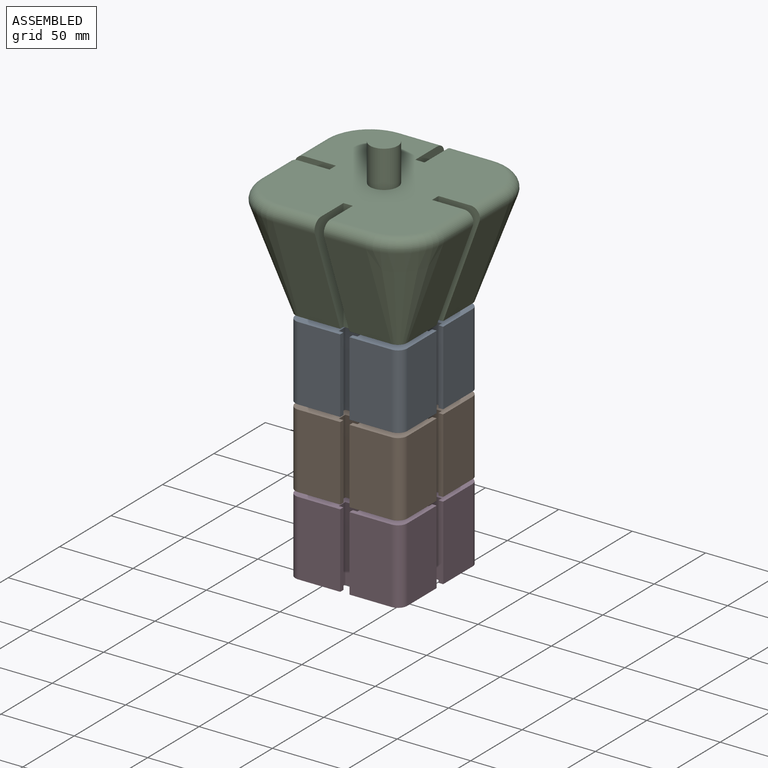
[diagram: assembled view]
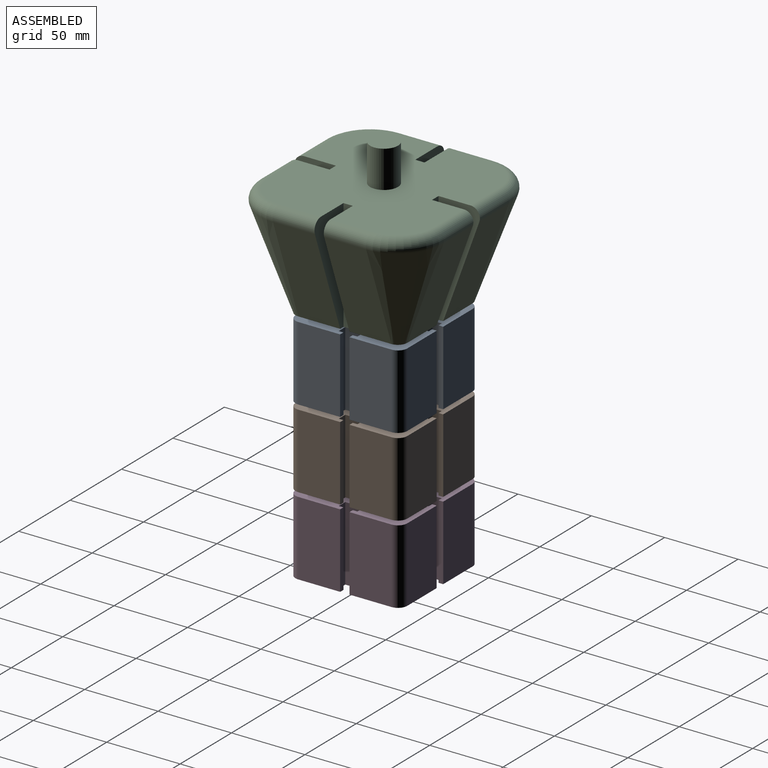
[diagram: assembled view, second angle]
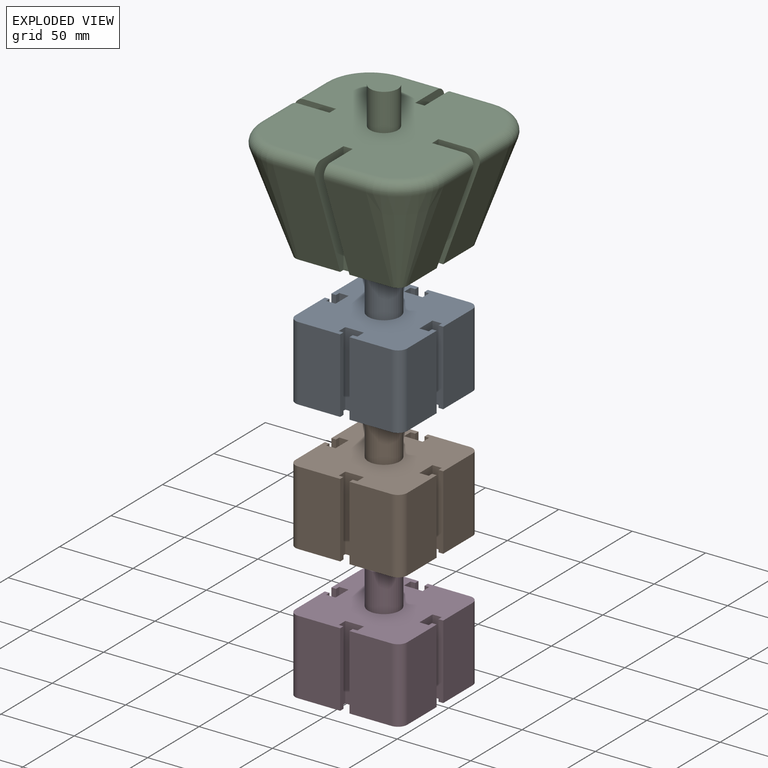
[diagram: exploded view]
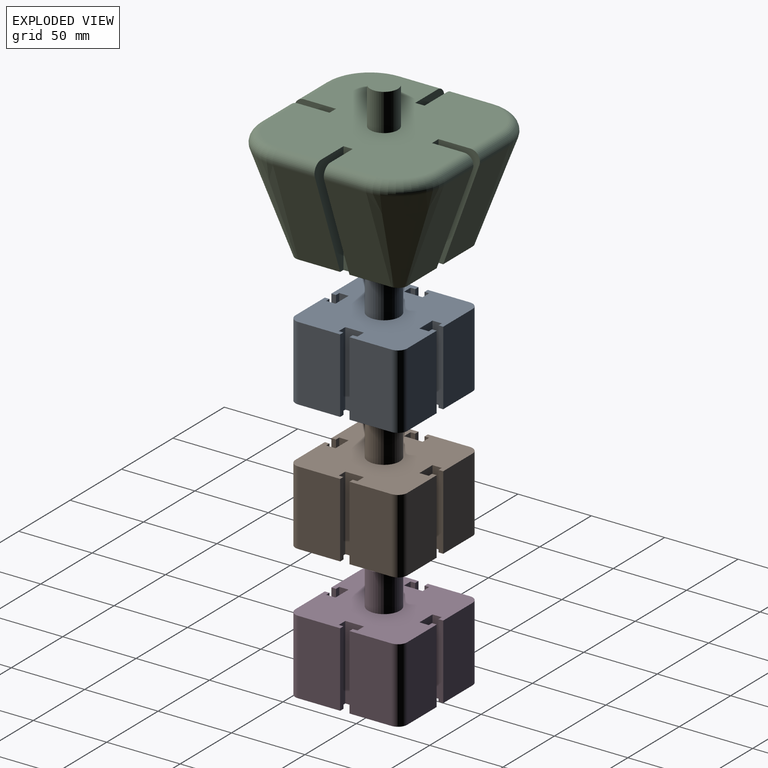
[diagram: exploded view, second angle]
ASSEMBLY  parts=4 mates=3
PART A: 46 faces, bbox 76.2x76.2x76.2 mm
  f0: plane 50.8x12.7mm, normal (0,1,0), area 645.2mm2, adj f1,f39,f40,f41
  f1: plane 50.8x6.35mm, normal (1,0,0), area 322.6mm2, adj f0,f2,f40,f41
  f2: plane 50.8x3.18mm, normal (0,-1,0), area 161.3mm2, adj f1,f3,f40,f41
  f3: plane 50.8x3.18mm, normal (1,0,0), area 161.3mm2, adj f2,f4,f40,f41
  f4: plane 50.8x28.58mm, normal (0,1,0), area 1451.6mm2, adj f3,f5,f40,f41
  f5: cylinder r=6.35mm len=50.8mm, axis (0,0,-1), area 506.7mm2, adj f4,f6,f40,f41
  f6: plane 50.8x28.58mm, normal (-1,0,0), area 1451.6mm2, adj f5,f7,f40,f41
  f7: plane 50.8x3.18mm, normal (0,-1,0), area 161.3mm2, adj f6,f8,f40,f41
  f8: plane 50.8x3.18mm, normal (1,0,0), area 161.3mm2, adj f7,f9,f40,f41
  f9: plane 50.8x6.35mm, normal (0,-1,0), area 322.6mm2, adj f8,f10,f40,f41
  f10: plane 50.8x12.7mm, normal (-1,0,0), area 645.2mm2, adj f9,f11,f40,f41
  f11: plane 50.8x6.35mm, normal (0,1,0), area 322.6mm2, adj f10,f12,f40,f41
  f12: plane 50.8x3.18mm, normal (1,0,0), area 161.3mm2, adj f11,f13,f40,f41
  f13: plane 50.8x3.18mm, normal (0,1,0), area 161.3mm2, adj f12,f14,f40,f41
  f14: plane 50.8x28.58mm, normal (-1,0,0), area 1451.6mm2, adj f13,f15,f40,f41
  f15: cylinder r=6.35mm len=50.8mm, axis (0,0,-1), area 506.7mm2, adj f14,f16,f40,f41
  f16: plane 50.8x28.58mm, normal (0,-1,0), area 1451.6mm2, adj f15,f17,f40,f41
  f17: plane 50.8x3.18mm, normal (1,0,0), area 161.3mm2, adj f16,f18,f40,f41
  f18: plane 50.8x3.18mm, normal (0,1,0), area 161.3mm2, adj f17,f19,f40,f41
  f19: plane 50.8x6.35mm, normal (1,0,0), area 322.6mm2, adj f18,f20,f40,f41
  f20: plane 50.8x12.7mm, normal (0,-1,0), area 645.2mm2, adj f19,f21,f40,f41
  f21: plane 50.8x6.35mm, normal (-1,0,0), area 322.6mm2, adj f20,f22,f40,f41
  f22: plane 50.8x3.18mm, normal (0,1,0), area 161.3mm2, adj f21,f23,f40,f41
  f23: plane 50.8x3.18mm, normal (-1,0,0), area 161.3mm2, adj f22,f24,f40,f41
  f24: plane 50.8x28.58mm, normal (0,-1,0), area 1451.6mm2, adj f23,f25,f40,f41
  f25: cylinder r=6.35mm len=50.8mm, axis (0,0,-1), area 506.7mm2, adj f24,f26,f40,f41
  f26: plane 50.8x28.58mm, normal (1,0,0), area 1451.6mm2, adj f25,f27,f40,f41
  f27: plane 50.8x3.18mm, normal (0,1,0), area 161.3mm2, adj f26,f28,f40,f41
  f28: plane 50.8x3.18mm, normal (-1,0,0), area 161.3mm2, adj f27,f29,f40,f41
  f29: plane 50.8x6.35mm, normal (0,1,0), area 322.6mm2, adj f28,f30,f40,f41
  f30: plane 50.8x12.7mm, normal (1,0,0), area 645.2mm2, adj f29,f31,f40,f41
  f31: plane 50.8x6.35mm, normal (0,-1,0), area 322.6mm2, adj f30,f32,f40,f41
  f32: plane 50.8x3.18mm, normal (-1,0,0), area 161.3mm2, adj f31,f33,f40,f41
  f33: plane 50.8x3.18mm, normal (0,-1,0), area 161.3mm2, adj f32,f34,f40,f41
  f34: plane 50.8x28.58mm, normal (1,0,0), area 1451.6mm2, adj f33,f35,f40,f41
  f35: cylinder r=6.35mm len=50.8mm, axis (0,0,-1), area 506.7mm2, adj f34,f36,f40,f41
  f36: plane 50.8x28.58mm, normal (0,1,0), area 1451.6mm2, adj f35,f37,f40,f41
  f37: plane 50.8x3.18mm, normal (-1,0,0), area 161.3mm2, adj f36,f38,f40,f41
  f38: plane 50.8x3.18mm, normal (0,-1,0), area 161.3mm2, adj f37,f39,f40,f41
  f39: plane 50.8x6.35mm, normal (-1,0,0), area 322.6mm2, adj f0,f38,f40,f41
  f40: plane 76.2x76.2mm, normal (0,0,1), area 5002.5mm2, adj f0,f1,f2,f3,f4,f5,f6,f7
  f41: plane 76.2x76.2mm, normal (0,0,-1), area 5002.5mm2, adj f0,f1,f2,f3,f4,f5,f6,f7
  f42: cylinder r=10.79mm len=25.4mm, axis (0,0,-1), area 1722.8mm2, adj f40,f43
  f43: plane 21.59x21.59mm, normal (0,0,1), area 366.1mm2, adj f42
  f44: cylinder r=10.79mm len=27.94mm, axis (0,0,-1), area 1895.1mm2, adj f41,f45
  f45: plane 21.59x21.59mm, normal (0,0,-1), area 366.1mm2, adj f44
PART B: same geometry as A
PART C: 42 faces, bbox 131.4x131.4x101.6 mm
  f0: plane 76.2x6.35mm, normal (1,0,0), area 483.9mm2, adj f1,f23,f24,f25
  f1: plane 76.2x28.19mm, normal (0,-1,0), area 1279.7mm2, adj f0,f2,f24,f25,f41
  f2: plane 67.68x28.58mm, normal (0.94,0,-0.34), area 2058mm2, adj f1,f3,f25,f41
  f3: cone r=6.35mm half-angle=20deg, axis (0,0,1), area 2111.8mm2, adj f2,f4,f25,f40
  f4: plane 67.68x28.58mm, normal (0,0.94,-0.34), area 2058mm2, adj f3,f5,f25,f39
  f5: plane 76.2x28.19mm, normal (-1,0,0), area 1279.7mm2, adj f4,f6,f24,f25,f39
  f6: plane 76.2x6.35mm, normal (0,1,0), area 483.9mm2, adj f5,f7,f24,f25
  f7: plane 76.2x28.19mm, normal (1,0,0), area 1279.7mm2, adj f6,f8,f24,f25,f32
  f8: plane 67.68x28.58mm, normal (0,0.94,-0.34), area 2058mm2, adj f7,f9,f25,f32
  f9: cone r=6.35mm half-angle=20deg, axis (0,0,1), area 2111.8mm2, adj f8,f10,f25,f31
  f10: plane 67.68x28.58mm, normal (-0.94,0,-0.34), area 2058mm2, adj f9,f11,f25,f30
  f11: plane 76.2x28.19mm, normal (0,-1,0), area 1279.7mm2, adj f10,f12,f24,f25,f30
  f12: plane 76.2x6.35mm, normal (-1,0,0), area 483.9mm2, adj f11,f13,f24,f25
  f13: plane 76.2x28.19mm, normal (0,1,0), area 1279.7mm2, adj f12,f14,f24,f25,f33
  f14: plane 67.68x28.58mm, normal (-0.94,0,-0.34), area 2058mm2, adj f13,f15,f25,f33
  f15: cone r=6.35mm half-angle=20deg, axis (0,0,1), area 2111.8mm2, adj f14,f16,f25,f34
  f16: plane 67.68x28.58mm, normal (0,-0.94,-0.34), area 2058mm2, adj f15,f17,f25,f35
  f17: plane 76.2x28.19mm, normal (1,0,0), area 1279.7mm2, adj f16,f18,f24,f25,f35
  f18: plane 76.2x6.35mm, normal (0,-1,0), area 483.9mm2, adj f17,f19,f24,f25
  f19: plane 76.2x28.19mm, normal (-1,0,0), area 1279.7mm2, adj f18,f20,f24,f25,f36
  f20: plane 67.68x28.58mm, normal (0,-0.94,-0.34), area 2058mm2, adj f19,f21,f25,f36
  f21: cone r=6.35mm half-angle=20deg, axis (0,0,1), area 2111.8mm2, adj f20,f22,f25,f37
  f22: plane 67.68x28.58mm, normal (0.94,0,-0.34), area 2058mm2, adj f21,f23,f25,f38
  f23: plane 76.2x28.19mm, normal (0,1,0), area 1279.7mm2, adj f0,f22,f24,f25,f38
  f24: plane 113.53x113.53mm, normal (0,0,1), area 11512.5mm2, adj f0,f1,f5,f6,f7,f11,f12,f13
  f25: plane 76.2x76.2mm, normal (0,0,-1), area 5325.1mm2, adj f0,f1,f2,f3,f4,f5,f6,f7
  f26: cylinder r=10.79mm len=27.94mm, axis (0,0,-1), area 1895.1mm2, adj f25,f27
  f27: plane 21.59x21.59mm, normal (0,0,-1), area 366.1mm2, adj f26
  f28: cylinder r=9.53mm len=25.4mm, axis (0,0,-1), area 1520.1mm2, adj f24,f29
  f29: plane 19.05x19.05mm, normal (0,0,1), area 285mm2, adj f28
  f30: cylinder r=6.35mm len=28.58mm, axis (0,-1,0), area 348.4mm2, adj f10,f11,f24,f31
  f31: torus R=25.02mm, axis (0,0,1), area 564mm2, adj f9,f24,f30,f32
  f32: cylinder r=6.35mm len=28.58mm, axis (-1,0,0), area 348.4mm2, adj f7,f8,f24,f31
  f33: cylinder r=6.35mm len=28.58mm, axis (0,-1,0), area 348.4mm2, adj f13,f14,f24,f34
  f34: torus R=25.02mm, axis (0,0,1), area 564mm2, adj f15,f24,f33,f35
  f35: cylinder r=6.35mm len=28.58mm, axis (1,0,0), area 348.4mm2, adj f16,f17,f24,f34
  f36: cylinder r=6.35mm len=28.58mm, axis (1,0,0), area 348.4mm2, adj f19,f20,f24,f37
  f37: torus R=25.02mm, axis (0,0,1), area 564mm2, adj f21,f24,f36,f38
  f38: cylinder r=6.35mm len=28.58mm, axis (0,-1,0), area 348.4mm2, adj f22,f23,f24,f37
  f39: cylinder r=6.35mm len=28.58mm, axis (-1,0,0), area 348.4mm2, adj f4,f5,f24,f40
  f40: torus R=25.02mm, axis (0,0,1), area 564mm2, adj f3,f24,f39,f41
  f41: cylinder r=6.35mm len=28.58mm, axis (0,-1,0), area 348.4mm2, adj f1,f2,f24,f40
PART D: same geometry as A
PLACE A t=(11.59,42.01,60.84)mm
PLACE B t=(11.59,42.01,6.87)mm
PLACE C t=(11.59,42.01,115.1)mm
PLACE D t=(11.59,42.01,-46.87)mm
MATE slider D.f42 <-> B.f42  axis (0,0,1) through (11.59,42.01,29.33)mm
MATE slider C.f26 <-> A.f42  axis (0,0,-1) through (11.59,42.01,143.04)mm
MATE slider A.f42 <-> B.f42  axis (0,0,-1) through (11.59,42.01,88.78)mm
